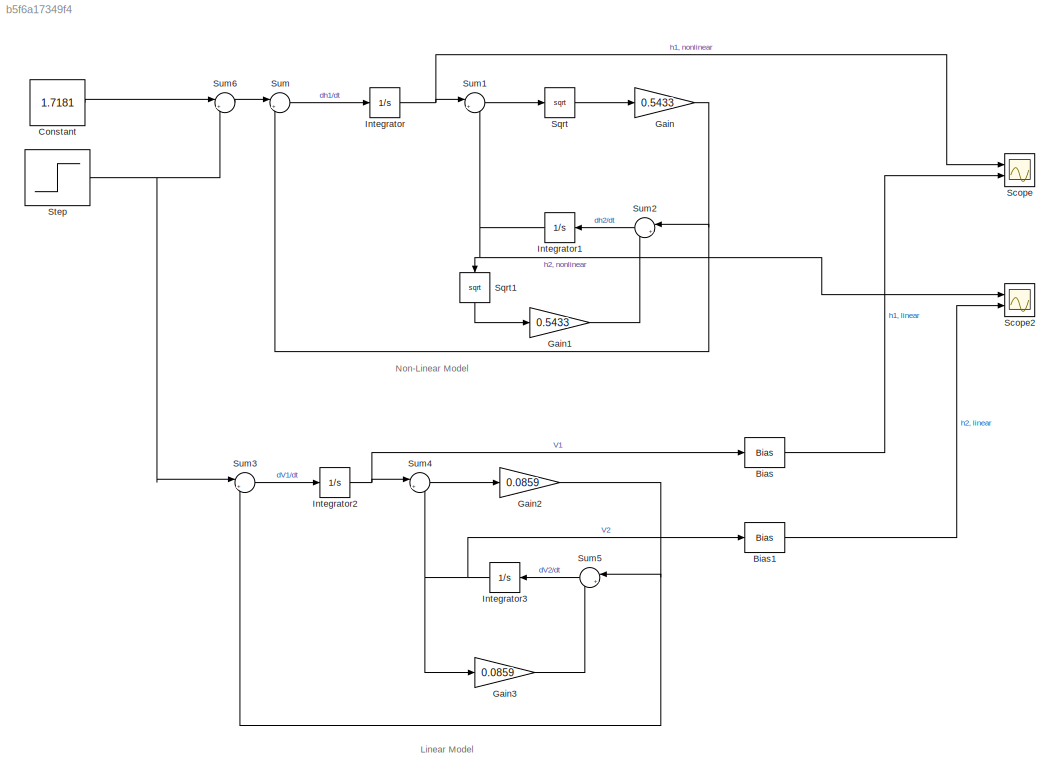
MODEL slx_b5f6a17349f4
KIND model
CONFIG AbsTol = auto
CONFIG EnableMultiTasking = off
CONFIG FixedStep = auto
CONFIG MaxStep = auto
CONFIG MinStep = auto
CONFIG RelTol = 1e-9
CONFIG SampleTimeConstraint = Unconstrained
CONFIG SolverName = VariableStepAuto
CONFIG StartTime = 0.0
CONFIG StopTime = 1000
BLOCK [Bias] Bias
  Bias = 20
  SaturateOnIntegerOverflow = off
BLOCK [Bias] Bias1
  Bias = 10
  SaturateOnIntegerOverflow = off
BLOCK [Constant] Constant
  Value = 1.7181
BLOCK [Gain] Gain
  Gain = 0.5433
BLOCK [Gain] Gain1
  Gain = 0.5433
BLOCK [Gain] Gain2
  Gain = 0.0859
BLOCK [Gain] Gain3
  Gain = 0.0859
BLOCK [Integrator] Integrator
  Ports = [1, 1]
BLOCK [Integrator] Integrator1
  Ports = [1, 1]
BLOCK [Integrator] Integrator2
  Ports = [1, 1]
BLOCK [Integrator] Integrator3
  Ports = [1, 1]
BLOCK [Scope] Scope
  Floating = off
  NumInputPorts = 2
  Ports = [2]
  ScopeSpecificationString = Simulink.scopes.TimeScopeBlockCfg('CurrentConfiguration', extmgr.ConfigurationSet(extmgr.Configuration('Core','General UI',true,'FigureColor',[0 0 0]),extmgr.Configuration('Core','Source UI',true),extmgr.Configuration('Sources','WiredSimulink',true),extmgr.Configuration('Visuals','Time Domain',true,'SerializedDisplays',{struct('MinYLimReal','-2.6853','MaxYLimReal','24.16773','YLabelReal','','MinYL...<+1650ch>
BLOCK [Scope] Scope2
  Floating = off
  NumInputPorts = 2
  Ports = [2]
  ScopeSpecificationString = Simulink.scopes.TimeScopeBlockCfg('CurrentConfiguration', extmgr.ConfigurationSet(extmgr.Configuration('Core','General UI',true),extmgr.Configuration('Core','Source UI',true),extmgr.Configuration('Sources','WiredSimulink',true,'DataLoggingVariableName','ScopeData1'),extmgr.Configuration('Visuals','Time Domain',true,'SerializedDisplays',{struct('MinYLimReal','-1.51256','MaxYLimReal','13.61305','YLa...<+1427ch>
BLOCK [Sqrt] Sqrt
BLOCK [Sqrt] Sqrt1
  NameLocation = left
BLOCK [Step] Step
  After = 0.0625
  SampleTime = 0
  Time = 500
BLOCK [Sum] Sum
  Inputs = |+-
  Ports = [2, 1]
BLOCK [Sum] Sum1
  Inputs = |+-
  Ports = [2, 1]
BLOCK [Sum] Sum2
  Inputs = |+-
  Ports = [2, 1]
BLOCK [Sum] Sum3
  Inputs = |+-
  Ports = [2, 1]
BLOCK [Sum] Sum4
  Inputs = |+-
  Ports = [2, 1]
BLOCK [Sum] Sum5
  Inputs = |+-
  Ports = [2, 1]
BLOCK [Sum] Sum6
  Inputs = |++
  Ports = [2, 1]
ANNOTATION (root): Linear Model
ANNOTATION (root): Non-Linear Model
LINE Bias1:1 -> Scope2:2
LINE Bias:1 -> Scope:2
LINE Constant:1 -> Sum6:1
LINE Gain1:1 -> Sum2:2
NET Gain2:1 -> Sum3:2, Sum5:1
LINE Gain3:1 -> Sum5:2
NET Gain:1 -> Sum2:1, Sum:2
NET Integrator1:1 -> Scope2:1, Sqrt1:1, Sum1:2
NET Integrator2:1 -> Bias:1, Sum4:1
NET Integrator3:1 -> Bias1:1, Gain3:1, Sum4:2
NET Integrator:1 -> Scope:1, Sum1:1
LINE Sqrt1:1 -> Gain1:1
LINE Sqrt:1 -> Gain:1
NET Step:1 -> Sum3:1, Sum6:2
LINE Sum1:1 -> Sqrt:1
LINE Sum2:1 -> Integrator1:1
LINE Sum3:1 -> Integrator2:1
LINE Sum4:1 -> Gain2:1
LINE Sum5:1 -> Integrator3:1
LINE Sum6:1 -> Sum:1
LINE Sum:1 -> Integrator:1
note: NET lines group one-source signal fan-out (src -> all destinations, sorted); 1:1 wires keep LINE
